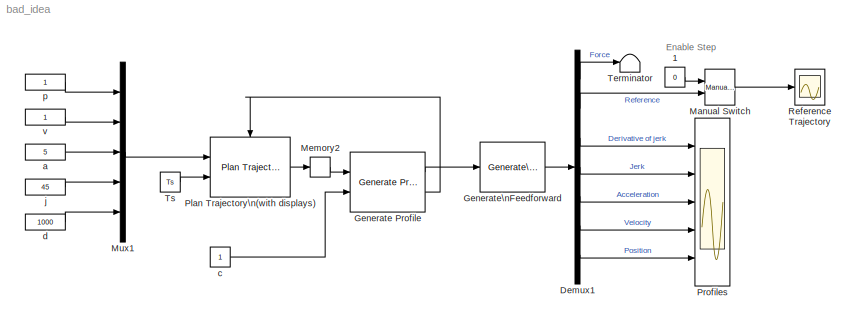
MODEL bad_idea
KIND model
BLOCK [Constant] 1
  SID = 1
  Value = 0
BLOCK [Demux] Demux1
  Outputs = 7
  Ports = [1, 7]
  SID = 2
BLOCK [Reference] Generate Profile  REF=motion/Real Time/Generate Profile  (lib defined in mdl_0f46438c83f5)
  Ports = [2, 2]
  SID = 4
  Sdir = 1
  SourceBlock = motion/Real Time/Generate Profile
  Ts = Ts
  Tset = 1
BLOCK [Reference] Generate\nFeedforward  REF=motion/Real Time/Generate\nFeedforward  (lib defined in mdl_0f46438c83f5)
  Ports = [1, 1]
  S1 = 1
  S2 = 1
  SID = 3
  SourceBlock = motion/Real Time/Generate\nFeedforward
  SourceType = Unknown
  Ts = Ts
  c = 6e5
  k1 = 10
  k12 = 500
  k2 = 10
  m1 = 20
  m2 = 10
BLOCK [Reference] Manual Switch  REF=simulink3/Nonlinear/Manual Switch
  Ports = [2, 1]
  SID = 5
  SourceBlock = simulink3/Nonlinear/Manual Switch
  SourceProductBaseCode = SL
  SourceProductName = Simulink
  SourceType = Manual Switch
  action = 0
  sw = 0
BLOCK [Memory] Memory2
  InheritSampleTime = on
  SID = 6
BLOCK [Mux] Mux1
  DisplayOption = bar
  Inputs = 5
  Ports = [5, 1]
  SID = 7
BLOCK [Reference] Plan Trajectory\n(with displays)  REF=motion/Real Time/Plan Trajectory\n(with displays)  (lib defined in mdl_0f46438c83f5)
  Ports = [2, 1, 0, 1]
  RTWFcnNameOpts = Auto
  RTWFileNameOpts = Auto
  RTWSystemCode = Auto
  SID = 8
  ShowPortLabels = on
  SourceBlock = motion/Real Time/Plan Trajectory\n(with displays)
  SourceType = SubSystem
  TreatAsAtomicUnit = on
BLOCK [Scope] Profiles
  Floating = off
  NumInputPorts = 5
  Ports = [5]
  SID = 9
  ScopeSpecificationString = C++SS(StrPVP('Location','[858, 53, 1213, 808]'),StrPVP('Open','on'),StrPVP('TickLabels','OneTimeTick'),StrPVP('ZoomMode','yonly'),MxPVP('AxesTitles',54,'struct(''axes1'',''%<SignalLabel>'',''axes2'',''%<SignalLabel>'',''axes3'',''%<SignalLabel>'',''axes4'',''%<SignalLabel>'',''axes5'',''%<SignalLabel>'')'),StrPVP('Grid','on'),StrPVP('TimeRange','50'),StrPVP('YMin','-1000~-50~-5~-1~-0.5'),StrPVP('Y...<+288ch>
BLOCK [Scope] Reference Trajectory
  Floating = off
  NumInputPorts = 1
  Ports = [1]
  SID = 10
  ScopeSpecificationString = C++SS(StrPVP('Location','[126, 514, 481, 806]'),StrPVP('Open','off'),StrPVP('TickLabels','OneTimeTick'),StrPVP('ZoomMode','yonly'),MxPVP('AxesTitles',54,'struct(''axes1'',''%<SignalLabel>'')'),StrPVP('Grid','on'),StrPVP('TimeRange','3'),StrPVP('YMin','-0.2'),StrPVP('YMax','1.2'),StrPVP('SaveToWorkspace','off'),StrPVP('SaveName','ScopeData1'),StrPVP('DataFormat','StructureWithTime'),StrPVP('LimitDa...<+146ch>
BLOCK [Terminator] Terminator
  SID = 11
BLOCK [Constant] Ts
  SID = 12
  Value = Ts
BLOCK [Constant] a
  SID = 13
  Value = 5
BLOCK [Constant] c
  SID = 14
BLOCK [Constant] d
  SID = 15
  Value = 1000
BLOCK [Constant] j
  SID = 16
  Value = 45
BLOCK [Constant] p
  SID = 17
BLOCK [Constant] v
  SID = 18
ANNOTATION (root): Enable Step
LINE 1:1 -> Manual Switch:1
LINE Demux1:1 -> Terminator:1
LINE Demux1:2 -> Manual Switch:2
LINE Demux1:3 -> Profiles:1
LINE Demux1:4 -> Profiles:2
LINE Demux1:5 -> Profiles:3
LINE Demux1:6 -> Profiles:4
LINE Demux1:7 -> Profiles:5
LINE Generate Profile:1 -> Generate\nFeedforward:1
LINE Generate Profile:2 -> Plan Trajectory\n(with displays):trigger
LINE Generate\nFeedforward:1 -> Demux1:1
LINE Manual Switch:1 -> Reference Trajectory:1
LINE Memory2:1 -> Generate Profile:1
LINE Mux1:1 -> Plan Trajectory\n(with displays):1
LINE Plan Trajectory\n(with displays):1 -> Memory2:1
LINE Ts:1 -> Plan Trajectory\n(with displays):2
LINE a:1 -> Mux1:3
LINE c:1 -> Generate Profile:2
LINE d:1 -> Mux1:5
LINE j:1 -> Mux1:4
LINE p:1 -> Mux1:1
LINE v:1 -> Mux1:2
